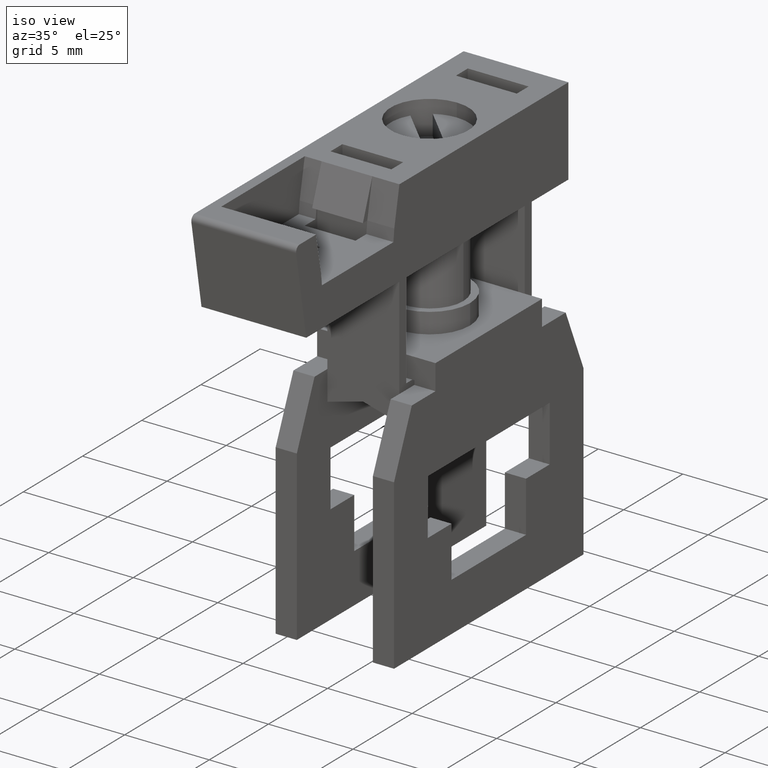
[diagram: clean part render]
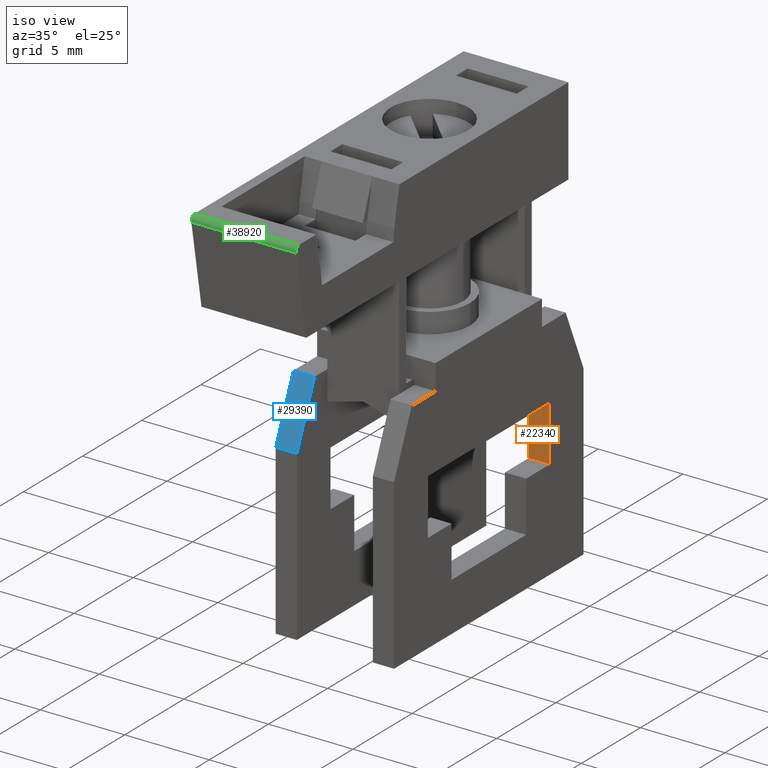
[diagram: same view with three faces highlighted in distinct colors, each labeled with its STEP entity id]
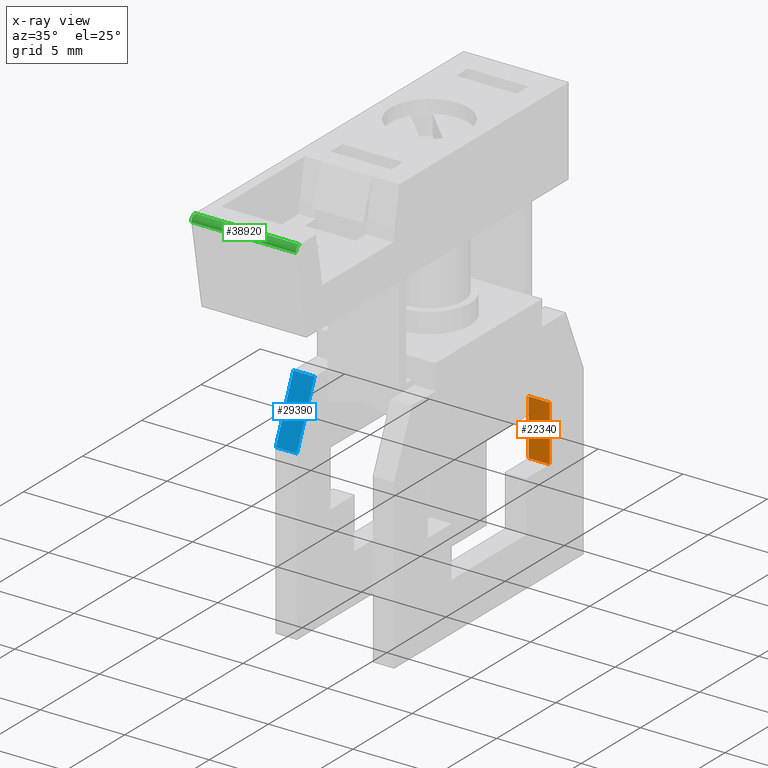
[diagram: x-ray of the same camera — body ghosted, the three highlighted faces saturated]
A machine part, iso view with three faces highlighted in distinct colors.
The next image is the same camera in x-ray (body ghosted, the three faces saturated) — at least one of them is partly hidden behind the body in this view.
Their STEP definitions:

[orange] entity #22340 — the highlighted planar face has unit normal (0, 1, -0).
#19040=CARTESIAN_POINT('',(0.,11.4,2.84999999999999));
#19050=VERTEX_POINT('',#19040);
#19080=CARTESIAN_POINT('',(0.,5.5,2.85));
#19090=DIRECTION('',(0.,1.,-1.83697019872103E-16));
#19100=VECTOR('',#19090,1.);
#19110=LINE('',#19080,#19100);
#19120=CARTESIAN_POINT('',(0.,14.7,2.84999999999999));
#19130=VERTEX_POINT('',#19120);
#19140=EDGE_CURVE('',#19050,#19130,#19110,.T.);
#20610=CARTESIAN_POINT('',(0.,14.7,2.84999999999999));
#20620=DIRECTION('',(-1.,0.,0.));
#20630=VECTOR('',#20620,1.);
#20640=LINE('',#20610,#20630);
#20650=CARTESIAN_POINT('',(-1.25,14.7,2.84999999999999));
#20660=VERTEX_POINT('',#20650);
#20670=EDGE_CURVE('',#19130,#20660,#20640,.T.);
#21490=CARTESIAN_POINT('',(-1.25,5.5,2.85));
#21500=DIRECTION('',(0.,-1.,1.83697019872103E-16));
#21510=VECTOR('',#21500,1.);
#21520=LINE('',#21490,#21510);
#21530=CARTESIAN_POINT('',(-1.25,11.4,2.84999999999999));
#21540=VERTEX_POINT('',#21530);
#21550=EDGE_CURVE('',#20660,#21540,#21520,.T.);
#22180=CARTESIAN_POINT('',(-7.7000024,14.7,2.84999999999999));
#22190=DIRECTION('',(-0.,-1.83697019872103E-16,-1.));
#22200=DIRECTION('',(0.,-1.,1.83697019872103E-16));
#22210=AXIS2_PLACEMENT_3D('',#22180,#22190,#22200);
#22220=PLANE('',#22210);
#22230=CARTESIAN_POINT('',(-7.7000024,11.4,2.84999999999999));
#22240=DIRECTION('',(1.,0.,0.));
#22250=VECTOR('',#22240,1.);
#22260=LINE('',#22230,#22250);
#22270=EDGE_CURVE('',#21540,#19050,#22260,.T.);
#22280=ORIENTED_EDGE('',*,*,#22270,.T.);
#22290=ORIENTED_EDGE('',*,*,#21550,.T.);
#22300=ORIENTED_EDGE('',*,*,#20670,.T.);
#22310=ORIENTED_EDGE('',*,*,#19140,.T.);
#22320=EDGE_LOOP('',(#22310,#22300,#22290,#22280));
#22330=FACE_OUTER_BOUND('',#22320,.T.);
#22340=ADVANCED_FACE('',(#22330),#22220,.F.);

[blue] entity #29390 — the highlighted planar face has unit normal (0, 0.9205, -0.3907).
#23140=CARTESIAN_POINT('',(-7.7000024,19.,14.5));
#23150=DIRECTION('',(-0.,-0.390731128489276,-0.920504853452439));
#23160=DIRECTION('',(0.,-0.920504853452439,0.390731128489276));
#23170=AXIS2_PLACEMENT_3D('',#23140,#23150,#23160);
#23180=PLANE('',#23170);
#23190=CARTESIAN_POINT('',(-7.7000024,19.,14.5));
#23200=DIRECTION('',(1.,0.,0.));
#23210=VECTOR('',#23200,1.);
#23220=LINE('',#23190,#23210);
#23260=CARTESIAN_POINT('',(0.,15.4662214512644,16.));
#23270=DIRECTION('',(1.,0.,0.));
#23280=VECTOR('',#23270,1.);
#23290=LINE('',#23260,#23280);
#24390=CARTESIAN_POINT('',(-5.75,15.4662214512644,16.));
#24400=VERTEX_POINT('',#24390);
#24430=CARTESIAN_POINT('',(-5.75,5.5,20.2304100188297));
#24440=DIRECTION('',(0.,0.920504853452439,-0.390731128489276));
#24450=VECTOR('',#24440,1.);
#24460=LINE('',#24430,#24450);
#24470=CARTESIAN_POINT('',(-5.75,19.,14.5));
#24480=VERTEX_POINT('',#24470);
#24490=EDGE_CURVE('',#24400,#24480,#24460,.T.);
#26340=CARTESIAN_POINT('',(-7.,19.,14.5));
#26350=VERTEX_POINT('',#26340);
#26380=CARTESIAN_POINT('',(-7.,5.5,20.2304100188297));
#26390=DIRECTION('',(0.,-0.920504853452439,0.390731128489276));
#26400=VECTOR('',#26390,1.);
#26410=LINE('',#26380,#26400);
#26420=CARTESIAN_POINT('',(-7.,15.4662214512644,16.));
#26430=VERTEX_POINT('',#26420);
#26440=EDGE_CURVE('',#26350,#26430,#26410,.T.);
#28610=EDGE_CURVE('',#26430,#24400,#23290,.T.);
#29180=EDGE_CURVE('',#26350,#24480,#23220,.T.);
#29330=ORIENTED_EDGE('',*,*,#29180,.F.);
#29340=ORIENTED_EDGE('',*,*,#24490,.T.);
#29350=ORIENTED_EDGE('',*,*,#28610,.T.);
#29360=ORIENTED_EDGE('',*,*,#26440,.T.);
#29370=EDGE_LOOP('',(#29360,#29350,#29340,#29330));
#29380=FACE_OUTER_BOUND('',#29370,.T.);
#29390=ADVANCED_FACE('',(#29380),#23180,.F.);

[green] entity #38920 — the highlighted cylindrical surface (edge-blend (fillet) strip) has radius 0.3 mm, axis along (1, 0, 0).
#520=CARTESIAN_POINT('',(-0.4,30.5479055466999,23.6952595740094));
#530=VERTEX_POINT('',#520);
#560=CARTESIAN_POINT('',(-0.4,30.6,23.3998172481057));
#570=DIRECTION('',(1.,0.,-6.12323399573677E-17));
#580=DIRECTION('',(-6.12323399573677E-17,0.,-1.));
#590=AXIS2_PLACEMENT_3D('',#560,#570,#580);
#600=CIRCLE('',#590,0.3);
#610=CARTESIAN_POINT('',(-0.4,30.9,23.3998172481057));
#620=VERTEX_POINT('',#610);
#630=EDGE_CURVE('',#620,#530,#600,.T.);
#1100=CARTESIAN_POINT('',(-6.6,30.6,23.3998172481057));
#1110=DIRECTION('',(1.,0.,-6.12323399573677E-17));
#1120=DIRECTION('',(-6.12323399573677E-17,0.,-1.));
#1130=AXIS2_PLACEMENT_3D('',#1100,#1110,#1120);
#1140=CIRCLE('',#1130,0.3);
#1150=CARTESIAN_POINT('',(-6.6,30.9,23.3998172481057));
#1160=VERTEX_POINT('',#1150);
#1170=CARTESIAN_POINT('',(-6.6,30.5479055466999,23.6952595740094));
#1180=VERTEX_POINT('',#1170);
#1190=EDGE_CURVE('',#1160,#1180,#1140,.T.);
#7360=CARTESIAN_POINT('',(0.,30.9,23.3998172481057));
#7370=DIRECTION('',(1.,0.,-6.12323399573677E-17));
#7380=VECTOR('',#7370,1.);
#7390=LINE('',#7360,#7380);
#7400=EDGE_CURVE('',#1160,#620,#7390,.T.);
#38130=CARTESIAN_POINT('',(1.80906249375285E-17,30.5479055466999,
23.6952595740094));
#38140=DIRECTION('',(1.,0.,-6.12323399573677E-17));
#38150=VECTOR('',#38140,1.);
#38160=LINE('',#38130,#38150);
#38170=EDGE_CURVE('',#1180,#530,#38160,.T.);
#38810=CARTESIAN_POINT('',(0.,30.6,23.3998172481057));
#38820=DIRECTION('',(1.,0.,-6.12323399573677E-17));
#38830=DIRECTION('',(-6.12323399573677E-17,0.,-1.));
#38840=AXIS2_PLACEMENT_3D('',#38810,#38820,#38830);
#38850=CYLINDRICAL_SURFACE('',#38840,0.3);
#38860=ORIENTED_EDGE('',*,*,#630,.F.);
#38870=ORIENTED_EDGE('',*,*,#38170,.T.);
#38880=ORIENTED_EDGE('',*,*,#1190,.T.);
#38890=ORIENTED_EDGE('',*,*,#7400,.F.);
#38900=EDGE_LOOP('',(#38890,#38880,#38870,#38860));
#38910=FACE_OUTER_BOUND('',#38900,.T.);
#38920=ADVANCED_FACE('',(#38910),#38850,.T.);